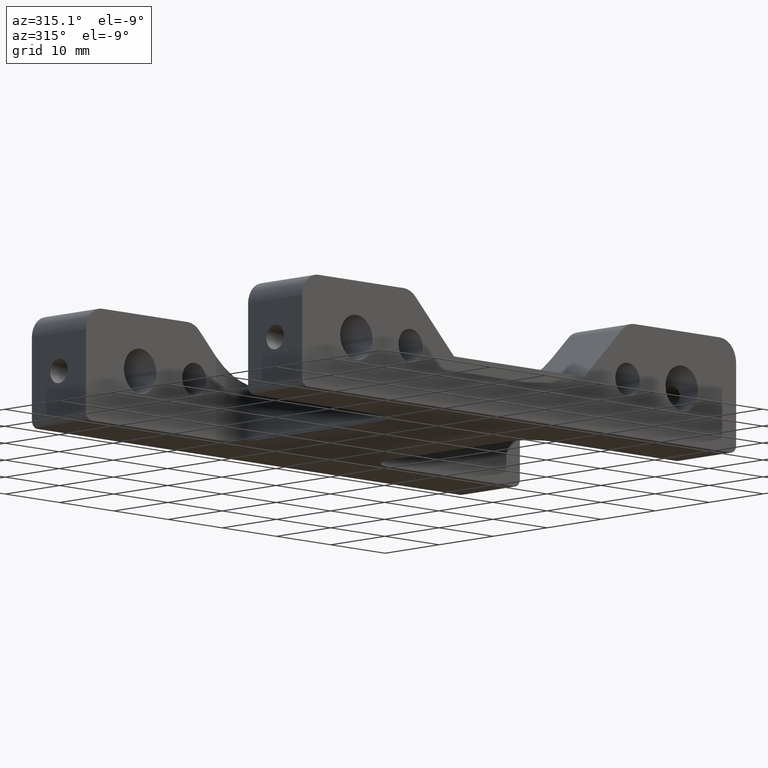
[diagram: clean part render]
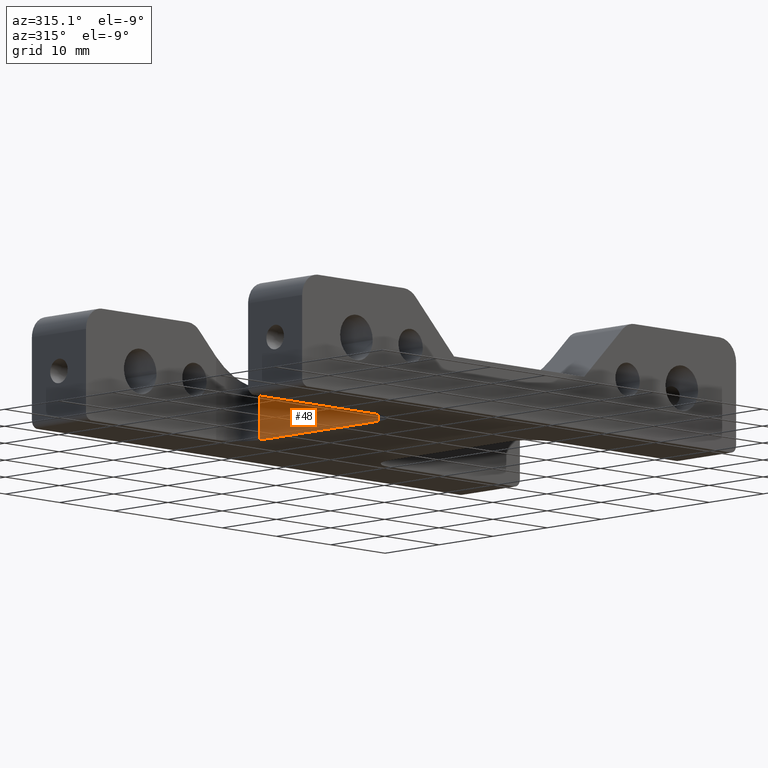
[diagram: same view with one face highlighted and labeled with its STEP entity id]
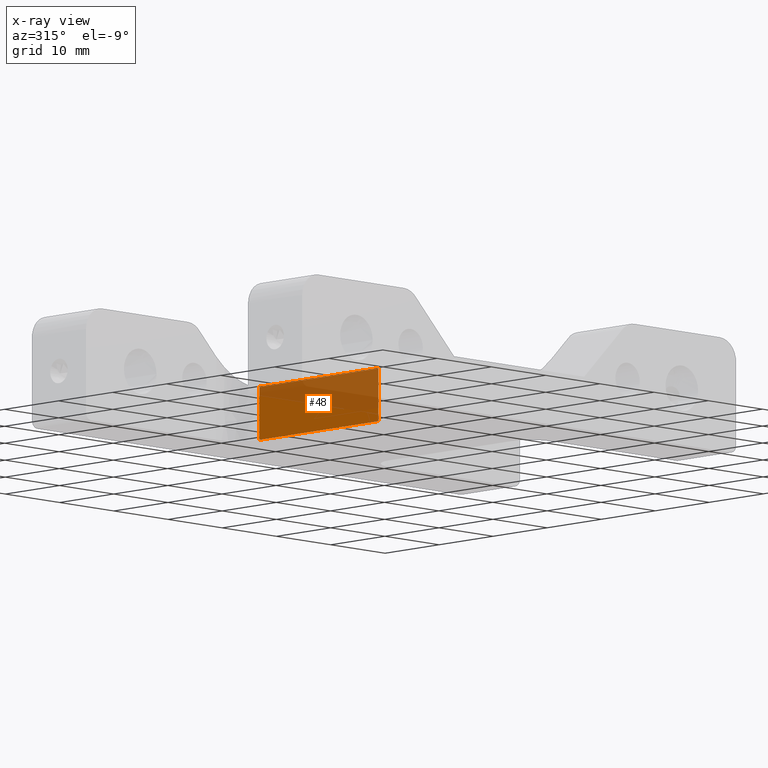
[diagram: x-ray of the same camera — body ghosted, the highlighted face saturated]
A machine part, auxiliary view. The second image highlights one B-rep face of the part: STEP entity #48.
The next image is the same camera in x-ray: the body ghosted, the highlighted face saturated — about 51% of this face is hidden behind the body in this view.
In plain terms, the highlighted planar face has unit normal (-1, 0, 0).
Its self-contained STEP definition (entity closure, byte-faithful):
#48=ADVANCED_FACE('',(#130),#1173,.T.);
#130=FACE_OUTER_BOUND('',#202,.T.);
#202=EDGE_LOOP('',(#425,#426,#427,#428));
#425=ORIENTED_EDGE('',*,*,#711,.F.);
#426=ORIENTED_EDGE('',*,*,#655,.T.);
#427=ORIENTED_EDGE('',*,*,#710,.F.);
#428=ORIENTED_EDGE('',*,*,#712,.F.);
#655=EDGE_CURVE('',#1051,#1050,#938,.T.);
#710=EDGE_CURVE('',#1079,#1050,#969,.T.);
#711=EDGE_CURVE('',#1051,#1080,#970,.T.);
#712=EDGE_CURVE('',#1080,#1079,#971,.T.);
#938=B_SPLINE_CURVE_WITH_KNOTS('',1,(#1847,#1848),.UNSPECIFIED.,.F.,.F.,
(2,2),(-1.85,0.35),.UNSPECIFIED.);
#969=B_SPLINE_CURVE_WITH_KNOTS('',1,(#1978,#1979),.UNSPECIFIED.,.F.,.F.,
(2,2),(-1.5,-0.8),.UNSPECIFIED.);
#970=B_SPLINE_CURVE_WITH_KNOTS('',1,(#1980,#1981),.UNSPECIFIED.,.F.,.F.,
(2,2),(0.8,1.5),.UNSPECIFIED.);
#971=B_SPLINE_CURVE_WITH_KNOTS('',1,(#1982,#1983),.UNSPECIFIED.,.F.,.F.,
(2,2),(-1.85,0.35),.UNSPECIFIED.);
#1050=VERTEX_POINT('',#1672);
#1051=VERTEX_POINT('',#1673);
#1079=VERTEX_POINT('',#1701);
#1080=VERTEX_POINT('',#1702);
#1173=PLANE('',#1215);
#1215=AXIS2_PLACEMENT_3D('',#1407,#1240,$);
#1240=DIRECTION('',(-1.,0.,0.));
#1407=CARTESIAN_POINT('',(-11.9999999881972,-11.0099999973046,7.01));
#1672=CARTESIAN_POINT('',(-11.9999999881972,11.0000000026954,7.));
#1673=CARTESIAN_POINT('',(-11.9999999881972,-10.9999999973046,7.));
#1701=CARTESIAN_POINT('',(-11.9999999881972,11.0000000026954,0.));
#1702=CARTESIAN_POINT('',(-11.9999999881972,-10.9999999973046,0.));
#1847=CARTESIAN_POINT('',(-11.9999999881972,-10.9999999973046,7.));
#1848=CARTESIAN_POINT('',(-11.9999999881972,11.0000000026954,7.));
#1978=CARTESIAN_POINT('',(-11.9999999881972,11.0000000026954,0.));
#1979=CARTESIAN_POINT('',(-11.9999999881972,11.0000000026954,7.));
#1980=CARTESIAN_POINT('',(-11.9999999881972,-10.9999999973046,7.));
#1981=CARTESIAN_POINT('',(-11.9999999881972,-10.9999999973046,0.));
#1982=CARTESIAN_POINT('',(-11.9999999881972,-10.9999999973046,0.));
#1983=CARTESIAN_POINT('',(-11.9999999881972,11.0000000026954,0.));